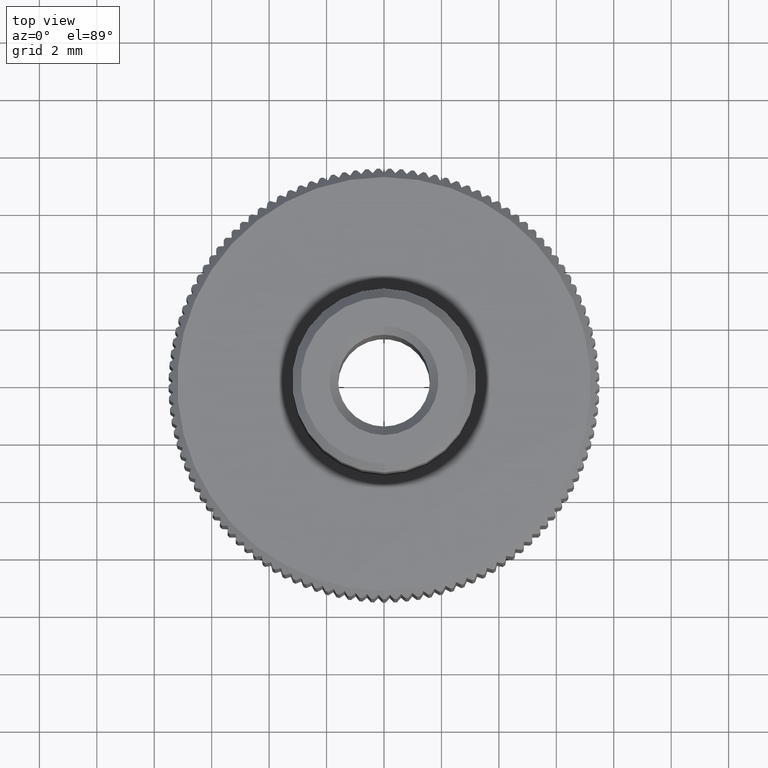
[diagram: clean part render]
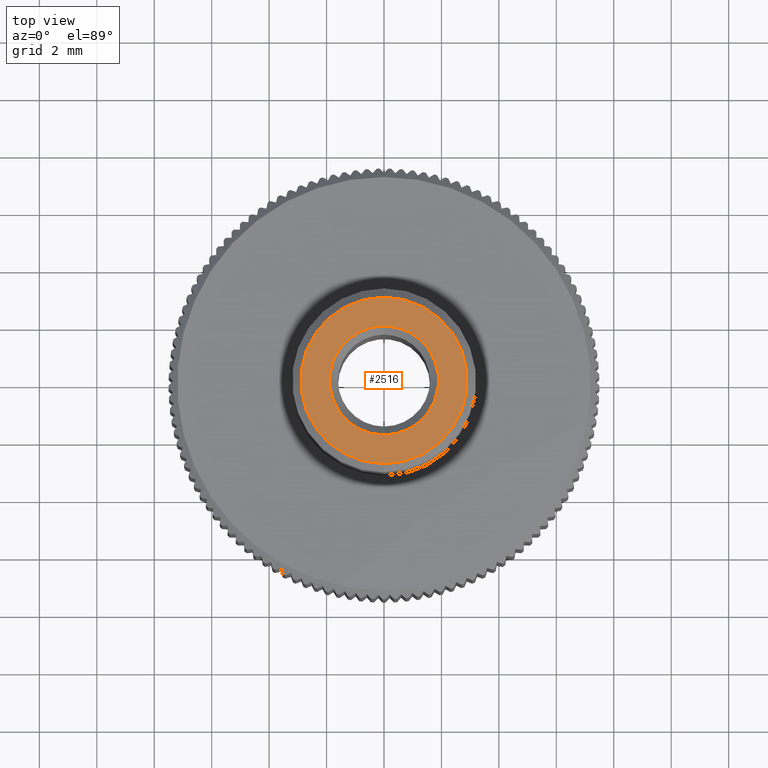
[diagram: same view with one face highlighted and labeled with its STEP entity id]
A machine part, top view. The second image highlights one B-rep face of the part: STEP entity #2516.
In plain terms, the highlighted planar face has unit normal (0, 0, 1).
Its self-contained STEP definition (entity closure, byte-faithful):
#265 = AXIS2_PLACEMENT_3D ( 'NONE', #11281, #2192, #5245 ) ;
#337 = CARTESIAN_POINT ( 'NONE',  ( 0.000000000000000000, 1.626303258727654405E-16, 14.09999999999989129 ) ) ;
#788 = CARTESIAN_POINT ( 'NONE',  ( 3.735172737399426653E-16, -2.899999999999998135, 14.10000000000000142 ) ) ;
#1071 = ORIENTED_EDGE ( 'NONE', *, *, #8779, .T. ) ;
#1257 = DIRECTION ( 'NONE',  ( 0.000000000000000000, -1.000000000000000000, 9.130123557773194652E-16 ) ) ;
#1389 = CARTESIAN_POINT ( 'NONE',  ( 0.000000000000000000, 1.626303258727654405E-16, 14.09999999999989129 ) ) ;
#1839 = FACE_BOUND ( 'NONE', #3465, .T. ) ;
#2192 = DIRECTION ( 'NONE',  ( -0.000000000000000000, 2.990902544787598592E-16, 1.000000000000000000 ) ) ;
#2368 = DIRECTION ( 'NONE',  ( 0.000000000000000000, 1.000000000000000000, 0.000000000000000000 ) ) ;
#2516 = ADVANCED_FACE ( 'NONE', ( #1839, #8940 ), #3143, .T. ) ;
#3113 = EDGE_CURVE ( 'NONE', #11975, #9477, #5101, .T. ) ;
#3143 = PLANE ( 'NONE',  #6080 ) ;
#3318 = ORIENTED_EDGE ( 'NONE', *, *, #3113, .F. ) ;
#3465 = EDGE_LOOP ( 'NONE', ( #3318, #5886 ) ) ;
#3706 = CIRCLE ( 'NONE', #11117, 1.899999999999890665 ) ;
#4137 = CARTESIAN_POINT ( 'NONE',  ( -2.934799999999999631, -2.934799999999999631, 14.09999999999999964 ) ) ;
#4201 = DIRECTION ( 'NONE',  ( 1.000000000000000000, 0.000000000000000000, 0.000000000000000000 ) ) ;
#4231 = CARTESIAN_POINT ( 'NONE',  ( 0.000000000000000000, 5.188388858801783488E-31, 14.10000000000000142 ) ) ;
#4377 = DIRECTION ( 'NONE',  ( 0.000000000000000000, 5.421010862427522170E-16, 1.000000000000000000 ) ) ;
#4964 = AXIS2_PLACEMENT_3D ( 'NONE', #4231, #12524, #2368 ) ;
#5019 = CARTESIAN_POINT ( 'NONE',  ( 0.000000000000000000, -1.899999999999889555, 14.09999999999989129 ) ) ;
#5052 = CARTESIAN_POINT ( 'NONE',  ( 0.000000000000000000, 2.899999999999998135, 14.10000000000000142 ) ) ;
#5101 = CIRCLE ( 'NONE', #11444, 1.899999999999890665 ) ;
#5245 = DIRECTION ( 'NONE',  ( 0.000000000000000000, 1.000000000000000000, 0.000000000000000000 ) ) ;
#5640 = DIRECTION ( 'NONE',  ( 0.000000000000000000, -1.000000000000000000, 9.130123557773194652E-16 ) ) ;
#5886 = ORIENTED_EDGE ( 'NONE', *, *, #9968, .F. ) ;
#6011 = CARTESIAN_POINT ( 'NONE',  ( 2.326828918379838245E-16, 1.899999999999891775, 14.09999999999988951 ) ) ;
#6080 = AXIS2_PLACEMENT_3D ( 'NONE', #4137, #9176, #4201 ) ;
#6299 = ORIENTED_EDGE ( 'NONE', *, *, #7861, .T. ) ;
#7171 = DIRECTION ( 'NONE',  ( 0.000000000000000000, 5.421010862427522170E-16, 1.000000000000000000 ) ) ;
#7861 = EDGE_CURVE ( 'NONE', #12682, #10238, #11712, .T. ) ;
#8779 = EDGE_CURVE ( 'NONE', #10238, #12682, #11950, .T. ) ;
#8940 = FACE_OUTER_BOUND ( 'NONE', #12457, .T. ) ;
#9176 = DIRECTION ( 'NONE',  ( 0.000000000000000000, 0.000000000000000000, 1.000000000000000000 ) ) ;
#9477 = VERTEX_POINT ( 'NONE', #6011 ) ;
#9968 = EDGE_CURVE ( 'NONE', #9477, #11975, #3706, .T. ) ;
#10238 = VERTEX_POINT ( 'NONE', #5052 ) ;
#11117 = AXIS2_PLACEMENT_3D ( 'NONE', #1389, #7171, #1257 ) ;
#11281 = CARTESIAN_POINT ( 'NONE',  ( 0.000000000000000000, 5.188388858801783488E-31, 14.10000000000000142 ) ) ;
#11444 = AXIS2_PLACEMENT_3D ( 'NONE', #337, #4377, #5640 ) ;
#11712 = CIRCLE ( 'NONE', #265, 2.899999999999998135 ) ;
#11950 = CIRCLE ( 'NONE', #4964, 2.899999999999998135 ) ;
#11975 = VERTEX_POINT ( 'NONE', #5019 ) ;
#12457 = EDGE_LOOP ( 'NONE', ( #1071, #6299 ) ) ;
#12524 = DIRECTION ( 'NONE',  ( -0.000000000000000000, 2.990902544787598592E-16, 1.000000000000000000 ) ) ;
#12682 = VERTEX_POINT ( 'NONE', #788 ) ;